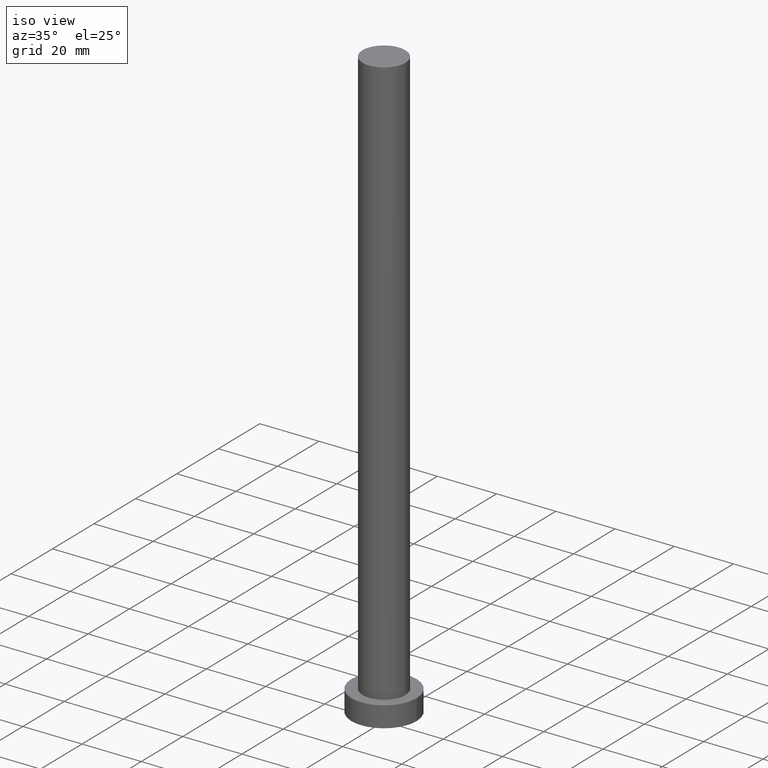
[diagram: clean part render]
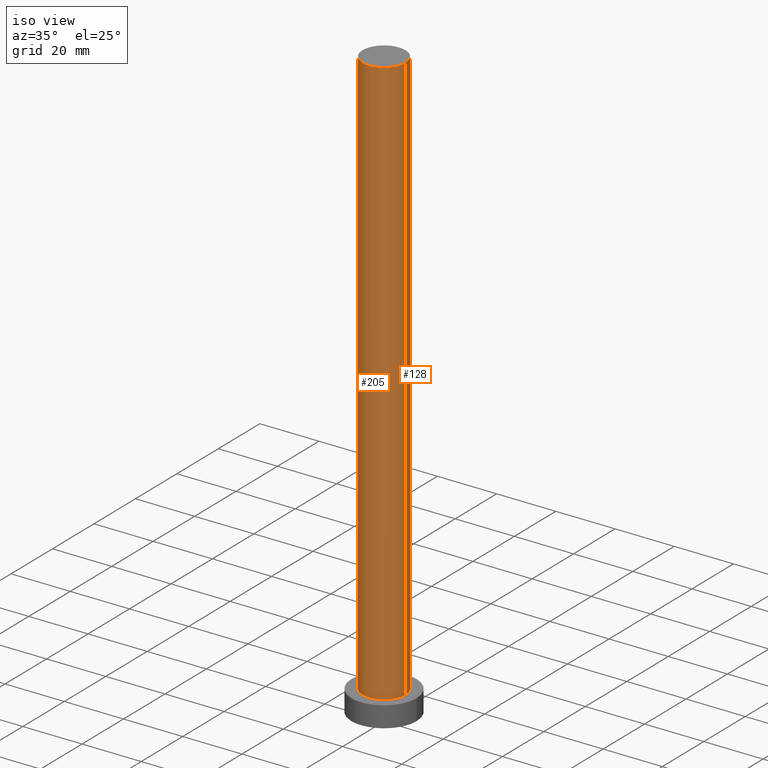
[diagram: same view with one multi-face feature highlighted, each face labeled with its STEP entity id]
A machine part, iso view. The highlighted faces form ONE feature: a constant-radius fillet chain: 2 tangent blend faces with common blend radius 7.25 mm. The faces share edges in the B-rep.
Their STEP definitions:
[1] entity #128 (Cylinder):
#1 = DIRECTION ( 'NONE',  ( 1.000000000000000000, 0.000000000000000000, 0.000000000000000000 ) ) ;
#6 = DIRECTION ( 'NONE',  ( -0.000000000000000000, -0.000000000000000000, -1.000000000000000000 ) ) ;
#10 = CARTESIAN_POINT ( 'NONE',  ( 7.250000000000000000, 8.878689293818310074E-16, 7.000000000000000000 ) ) ;
#16 = AXIS2_PLACEMENT_3D ( 'NONE', #57, #75, #1 ) ;
#19 = CARTESIAN_POINT ( 'NONE',  ( 0.000000000000000000, 0.000000000000000000, 200.0000000000000000 ) ) ;
#20 = LINE ( 'NONE', #149, #116 ) ;
#25 = EDGE_LOOP ( 'NONE', ( #162, #105, #240, #68 ) ) ;
#40 = CYLINDRICAL_SURFACE ( 'NONE', #120, 7.250000000000000000 ) ;
#44 = CARTESIAN_POINT ( 'NONE',  ( 7.250000000000000000, 8.878689293818310074E-16, 200.0000000000000000 ) ) ;
#47 = DIRECTION ( 'NONE',  ( 1.000000000000000000, 0.000000000000000000, 0.000000000000000000 ) ) ;
#52 = VERTEX_POINT ( 'NONE', #10 ) ;
#53 = CIRCLE ( 'NONE', #65, 7.250000000000000000 ) ;
#57 = CARTESIAN_POINT ( 'NONE',  ( 0.000000000000000000, 0.000000000000000000, 200.0000000000000000 ) ) ;
#65 = AXIS2_PLACEMENT_3D ( 'NONE', #241, #177, #47 ) ;
#68 = ORIENTED_EDGE ( 'NONE', *, *, #161, .F. ) ;
#75 = DIRECTION ( 'NONE',  ( 0.000000000000000000, 0.000000000000000000, 1.000000000000000000 ) ) ;
#77 = CARTESIAN_POINT ( 'NONE',  ( -7.250000000000000000, 0.000000000000000000, 7.000000000000000000 ) ) ;
#105 = ORIENTED_EDGE ( 'NONE', *, *, #194, .T. ) ;
#107 = DIRECTION ( 'NONE',  ( -1.000000000000000000, 0.000000000000000000, 0.000000000000000000 ) ) ;
#116 = VECTOR ( 'NONE', #195, 1000.000000000000000 ) ;
#120 = AXIS2_PLACEMENT_3D ( 'NONE', #19, #6, #107 ) ;
#122 = VERTEX_POINT ( 'NONE', #190 ) ;
#128 = ADVANCED_FACE ( 'NONE', ( #250 ), #40, .T. ) ;
#133 = CARTESIAN_POINT ( 'NONE',  ( -7.250000000000000000, 0.000000000000000000, 200.0000000000000000 ) ) ;
#136 = VERTEX_POINT ( 'NONE', #77 ) ;
#149 = CARTESIAN_POINT ( 'NONE',  ( -7.250000000000000000, 0.000000000000000000, 200.0000000000000000 ) ) ;
#154 = LINE ( 'NONE', #44, #214 ) ;
#161 = EDGE_CURVE ( 'NONE', #198, #136, #20, .T. ) ;
#162 = ORIENTED_EDGE ( 'NONE', *, *, #179, .F. ) ;
#177 = DIRECTION ( 'NONE',  ( 0.000000000000000000, 0.000000000000000000, 1.000000000000000000 ) ) ;
#179 = EDGE_CURVE ( 'NONE', #122, #198, #225, .T. ) ;
#190 = CARTESIAN_POINT ( 'NONE',  ( 7.250000000000000000, 8.878689293818310074E-16, 200.0000000000000000 ) ) ;
#194 = EDGE_CURVE ( 'NONE', #122, #52, #154, .T. ) ;
#195 = DIRECTION ( 'NONE',  ( -0.000000000000000000, -0.000000000000000000, -1.000000000000000000 ) ) ;
#198 = VERTEX_POINT ( 'NONE', #133 ) ;
#214 = VECTOR ( 'NONE', #219, 1000.000000000000000 ) ;
#219 = DIRECTION ( 'NONE',  ( -0.000000000000000000, -0.000000000000000000, -1.000000000000000000 ) ) ;
#225 = CIRCLE ( 'NONE', #16, 7.250000000000000000 ) ;
#239 = EDGE_CURVE ( 'NONE', #52, #136, #53, .T. ) ;
#240 = ORIENTED_EDGE ( 'NONE', *, *, #239, .T. ) ;
#241 = CARTESIAN_POINT ( 'NONE',  ( 0.000000000000000000, 0.000000000000000000, 7.000000000000000000 ) ) ;
#250 = FACE_OUTER_BOUND ( 'NONE', #25, .T. ) ;
[2] entity #205 (Cylinder):
#4 = AXIS2_PLACEMENT_3D ( 'NONE', #5, #61, #171 ) ;
#5 = CARTESIAN_POINT ( 'NONE',  ( 0.000000000000000000, 0.000000000000000000, 200.0000000000000000 ) ) ;
#10 = CARTESIAN_POINT ( 'NONE',  ( 7.250000000000000000, 8.878689293818310074E-16, 7.000000000000000000 ) ) ;
#20 = LINE ( 'NONE', #149, #116 ) ;
#43 = AXIS2_PLACEMENT_3D ( 'NONE', #109, #46, #174 ) ;
#44 = CARTESIAN_POINT ( 'NONE',  ( 7.250000000000000000, 8.878689293818310074E-16, 200.0000000000000000 ) ) ;
#46 = DIRECTION ( 'NONE',  ( 0.000000000000000000, 0.000000000000000000, 1.000000000000000000 ) ) ;
#52 = VERTEX_POINT ( 'NONE', #10 ) ;
#61 = DIRECTION ( 'NONE',  ( 0.000000000000000000, 0.000000000000000000, 1.000000000000000000 ) ) ;
#67 = ORIENTED_EDGE ( 'NONE', *, *, #215, .F. ) ;
#77 = CARTESIAN_POINT ( 'NONE',  ( -7.250000000000000000, 0.000000000000000000, 7.000000000000000000 ) ) ;
#95 = FACE_OUTER_BOUND ( 'NONE', #204, .T. ) ;
#99 = ORIENTED_EDGE ( 'NONE', *, *, #161, .T. ) ;
#109 = CARTESIAN_POINT ( 'NONE',  ( 0.000000000000000000, 0.000000000000000000, 7.000000000000000000 ) ) ;
#112 = CIRCLE ( 'NONE', #43, 7.250000000000000000 ) ;
#116 = VECTOR ( 'NONE', #195, 1000.000000000000000 ) ;
#117 = CIRCLE ( 'NONE', #4, 7.250000000000000000 ) ;
#122 = VERTEX_POINT ( 'NONE', #190 ) ;
#133 = CARTESIAN_POINT ( 'NONE',  ( -7.250000000000000000, 0.000000000000000000, 200.0000000000000000 ) ) ;
#136 = VERTEX_POINT ( 'NONE', #77 ) ;
#142 = EDGE_CURVE ( 'NONE', #136, #52, #112, .T. ) ;
#149 = CARTESIAN_POINT ( 'NONE',  ( -7.250000000000000000, 0.000000000000000000, 200.0000000000000000 ) ) ;
#151 = DIRECTION ( 'NONE',  ( -0.000000000000000000, -0.000000000000000000, -1.000000000000000000 ) ) ;
#154 = LINE ( 'NONE', #44, #214 ) ;
#161 = EDGE_CURVE ( 'NONE', #198, #136, #20, .T. ) ;
#170 = DIRECTION ( 'NONE',  ( -1.000000000000000000, 0.000000000000000000, 0.000000000000000000 ) ) ;
#171 = DIRECTION ( 'NONE',  ( 1.000000000000000000, 0.000000000000000000, 0.000000000000000000 ) ) ;
#174 = DIRECTION ( 'NONE',  ( 1.000000000000000000, 0.000000000000000000, 0.000000000000000000 ) ) ;
#181 = ORIENTED_EDGE ( 'NONE', *, *, #142, .T. ) ;
#190 = CARTESIAN_POINT ( 'NONE',  ( 7.250000000000000000, 8.878689293818310074E-16, 200.0000000000000000 ) ) ;
#194 = EDGE_CURVE ( 'NONE', #122, #52, #154, .T. ) ;
#195 = DIRECTION ( 'NONE',  ( -0.000000000000000000, -0.000000000000000000, -1.000000000000000000 ) ) ;
#198 = VERTEX_POINT ( 'NONE', #133 ) ;
#204 = EDGE_LOOP ( 'NONE', ( #235, #67, #99, #181 ) ) ;
#205 = ADVANCED_FACE ( 'NONE', ( #95 ), #223, .T. ) ;
#214 = VECTOR ( 'NONE', #219, 1000.000000000000000 ) ;
#215 = EDGE_CURVE ( 'NONE', #198, #122, #117, .T. ) ;
#219 = DIRECTION ( 'NONE',  ( -0.000000000000000000, -0.000000000000000000, -1.000000000000000000 ) ) ;
#223 = CYLINDRICAL_SURFACE ( 'NONE', #238, 7.250000000000000000 ) ;
#227 = CARTESIAN_POINT ( 'NONE',  ( 0.000000000000000000, 0.000000000000000000, 200.0000000000000000 ) ) ;
#235 = ORIENTED_EDGE ( 'NONE', *, *, #194, .F. ) ;
#238 = AXIS2_PLACEMENT_3D ( 'NONE', #227, #151, #170 ) ;